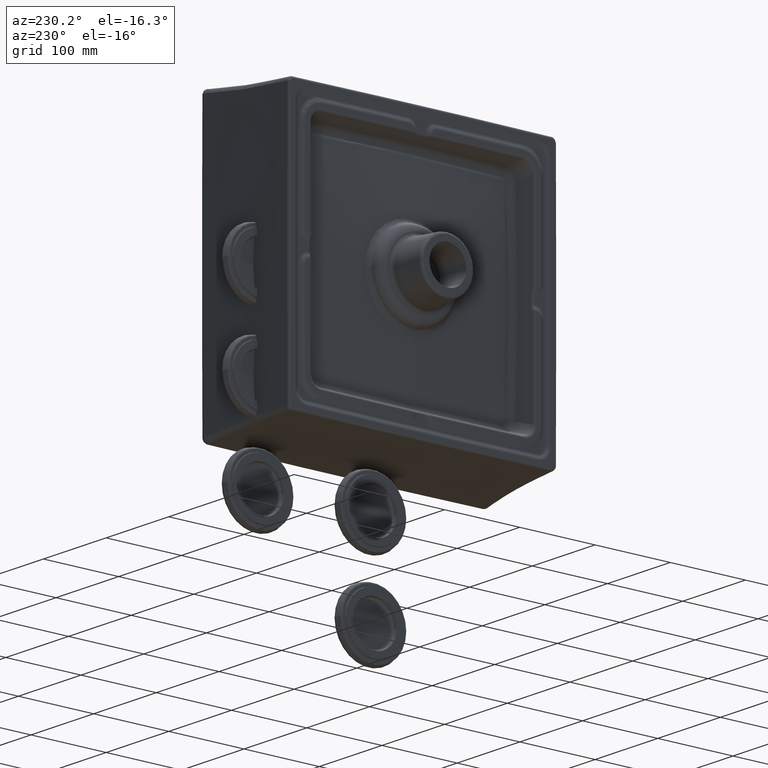
[diagram: clean part render]
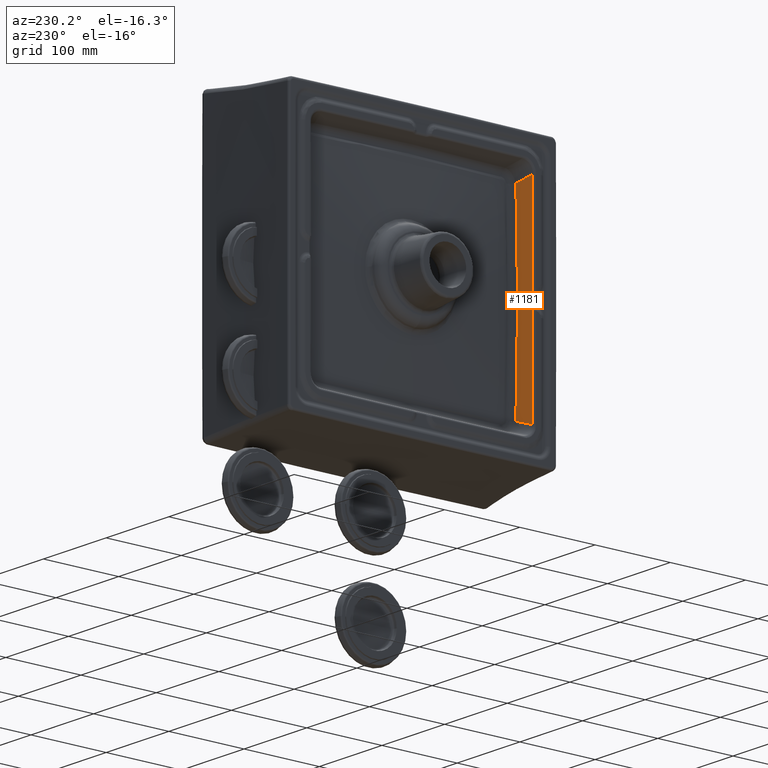
[diagram: same view with one face highlighted and labeled with its STEP entity id]
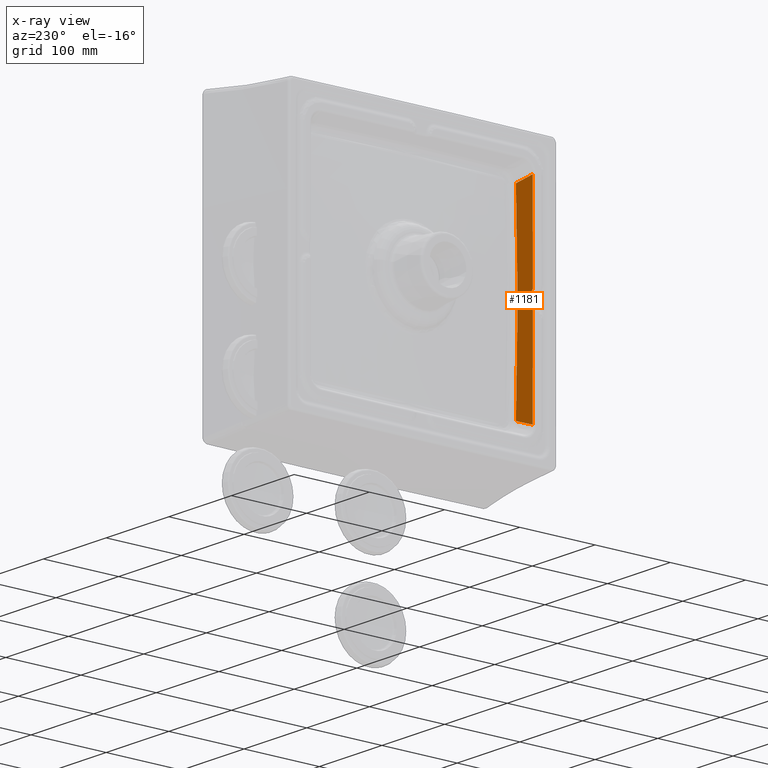
[diagram: x-ray of the same camera — body ghosted, the highlighted face saturated]
A machine part, auxiliary view. The second image highlights one B-rep face of the part: STEP entity #1181.
The next image is the same camera in x-ray: the body ghosted, the highlighted face saturated — about 0% of this face is hidden behind the body in this view.
In plain terms, the highlighted conical surface has half-angle 20 deg.
Its self-contained STEP definition (entity closure, byte-faithful):
#377=CONICAL_SURFACE('',#7120,39953.8697554,20.);
#456=(
BOUNDED_CURVE()
B_SPLINE_CURVE(3,(#11505,#11506,#11507,#11508,#11509),.UNSPECIFIED.,.F.,
 .F.)
B_SPLINE_CURVE_WITH_KNOTS((4,1,4),(0.,0.530372433518572,1.),
 .UNSPECIFIED.)
CURVE()
GEOMETRIC_REPRESENTATION_ITEM()
RATIONAL_B_SPLINE_CURVE((1.14277361366647,1.14277361366647,1.14277361366647,
1.14277361366647,1.14277361366647))
REPRESENTATION_ITEM('')
);
#773=B_SPLINE_CURVE_WITH_KNOTS('',3,(#11530,#11531,#11532,#11533,#11534,
#11535),.UNSPECIFIED.,.F.,.F.,(4,1,1,4),(0.,0.3333333333333,0.6666666666667,
1.),.UNSPECIFIED.);
#774=B_SPLINE_CURVE_WITH_KNOTS('',3,(#11537,#11538,#11539,#11540,#11541,
#11542,#11543,#11544,#11545,#11546,#11547,#11548,#11549,#11550,#11551,#11552,
#11553,#11554,#11555,#11556,#11557,#11558,#11559),.UNSPECIFIED.,.F.,.F.,
(4,2,2,1,1,1,2,2,2,2,2,2,4),(0.,0.125000000000002,0.187500000000003,0.218750000000003,
0.234375000000003,0.242187500000003,0.246093750000003,0.250000000000003,
0.375000000000002,0.437500000000002,0.468750000000002,0.500000000000002,
1.),.UNSPECIFIED.);
#775=B_SPLINE_CURVE_WITH_KNOTS('',3,(#11561,#11562,#11563,#11564,#11565,
#11566,#11567,#11568,#11569,#11570,#11571,#11572,#11573,#11574,#11575,#11576,
#11577,#11578,#11579,#11580,#11581,#11582,#11583,#11584),.UNSPECIFIED.,
 .F.,.F.,(4,2,2,1,2,2,2,2,1,1,1,2,2,4),(0.,0.25,0.375,0.4375,0.468749999999999,
0.499999999999999,0.624999999999997,0.687499999999996,0.718749999999995,
0.734374999999995,0.742187499999995,0.746093749999995,0.749999999999995,
1.),.UNSPECIFIED.);
#776=B_SPLINE_CURVE_WITH_KNOTS('',3,(#11586,#11587,#11588,#11589,#11590,
#11591),.UNSPECIFIED.,.F.,.F.,(4,1,1,4),(0.,0.3333333333333,0.6666666666667,
1.),.UNSPECIFIED.);
#777=B_SPLINE_CURVE_WITH_KNOTS('',3,(#11593,#11594,#11595,#11596),
 .UNSPECIFIED.,.F.,.F.,(4,4),(0.,1.),.UNSPECIFIED.);
#778=B_SPLINE_CURVE_WITH_KNOTS('',3,(#11600,#11601,#11602,#11603,#11604),
 .UNSPECIFIED.,.F.,.F.,(4,1,4),(0.,0.5,1.),.UNSPECIFIED.);
#779=B_SPLINE_CURVE_WITH_KNOTS('',3,(#11606,#11607,#11608,#11609,#11610),
 .UNSPECIFIED.,.F.,.F.,(4,1,4),(0.,0.5,1.),.UNSPECIFIED.);
#780=B_SPLINE_CURVE_WITH_KNOTS('',3,(#11612,#11613,#11614,#11615,#11616,
#11617),.UNSPECIFIED.,.F.,.F.,(4,2,4),(0.,0.5,1.),.UNSPECIFIED.);
#781=B_SPLINE_CURVE_WITH_KNOTS('',3,(#11621,#11622,#11623,#11624,#11625,
#11626),.UNSPECIFIED.,.F.,.F.,(4,2,4),(0.,0.5,1.),.UNSPECIFIED.);
#782=B_SPLINE_CURVE_WITH_KNOTS('',3,(#11628,#11629,#11630,#11631,#11632),
 .UNSPECIFIED.,.F.,.F.,(4,1,4),(0.,0.5,1.),.UNSPECIFIED.);
#783=B_SPLINE_CURVE_WITH_KNOTS('',3,(#11634,#11635,#11636,#11637,#11638),
 .UNSPECIFIED.,.F.,.F.,(4,1,4),(0.,0.5,1.),.UNSPECIFIED.);
#1181=ADVANCED_FACE('',(#1768),#377,.F.);
#1768=FACE_OUTER_BOUND('',#2216,.T.);
#2216=EDGE_LOOP('',(#2986,#2987,#2988,#2989,#2990,#2991,#2992,#2993,#2994,
#2995,#2996,#2997,#2998,#2999,#3000));
#2986=ORIENTED_EDGE('',*,*,#5574,.F.);
#2987=ORIENTED_EDGE('',*,*,#5575,.F.);
#2988=ORIENTED_EDGE('',*,*,#5576,.F.);
#2989=ORIENTED_EDGE('',*,*,#5577,.F.);
#2990=ORIENTED_EDGE('',*,*,#5578,.F.);
#2991=ORIENTED_EDGE('',*,*,#5579,.T.);
#2992=ORIENTED_EDGE('',*,*,#5580,.T.);
#2993=ORIENTED_EDGE('',*,*,#5581,.T.);
#2994=ORIENTED_EDGE('',*,*,#5582,.T.);
#2995=ORIENTED_EDGE('',*,*,#5583,.T.);
#2996=ORIENTED_EDGE('',*,*,#5584,.T.);
#2997=ORIENTED_EDGE('',*,*,#5585,.T.);
#2998=ORIENTED_EDGE('',*,*,#5586,.T.);
#2999=ORIENTED_EDGE('',*,*,#5587,.T.);
#3000=ORIENTED_EDGE('',*,*,#5588,.T.);
#4884=VERTEX_POINT('',#11425);
#4885=VERTEX_POINT('',#11504);
#4886=VERTEX_POINT('',#11536);
#4887=VERTEX_POINT('',#11560);
#4888=VERTEX_POINT('',#11585);
#4889=VERTEX_POINT('',#11592);
#4890=VERTEX_POINT('',#11597);
#4891=VERTEX_POINT('',#11599);
#4892=VERTEX_POINT('',#11605);
#4893=VERTEX_POINT('',#11611);
#4894=VERTEX_POINT('',#11618);
#4895=VERTEX_POINT('',#11620);
#4896=VERTEX_POINT('',#11627);
#4897=VERTEX_POINT('',#11633);
#4898=VERTEX_POINT('',#11639);
#5574=EDGE_CURVE('',#4885,#4884,#456,.T.);
#5575=EDGE_CURVE('',#4886,#4885,#773,.T.);
#5576=EDGE_CURVE('',#4887,#4886,#774,.T.);
#5577=EDGE_CURVE('',#4888,#4887,#775,.T.);
#5578=EDGE_CURVE('',#4889,#4888,#776,.T.);
#5579=EDGE_CURVE('',#4889,#4890,#777,.T.);
#5580=EDGE_CURVE('',#4890,#4891,#6534,.T.);
#5581=EDGE_CURVE('',#4891,#4892,#778,.T.);
#5582=EDGE_CURVE('',#4892,#4893,#779,.T.);
#5583=EDGE_CURVE('',#4893,#4894,#780,.T.);
#5584=EDGE_CURVE('',#4894,#4895,#6535,.T.);
#5585=EDGE_CURVE('',#4895,#4896,#781,.T.);
#5586=EDGE_CURVE('',#4896,#4897,#782,.T.);
#5587=EDGE_CURVE('',#4897,#4898,#783,.T.);
#5588=EDGE_CURVE('',#4898,#4884,#6536,.T.);
#6534=CIRCLE('',#7117,39957.28154475);
#6535=CIRCLE('',#7118,39956.55360428);
#6536=CIRCLE('',#7119,39957.28154475);
#7117=AXIS2_PLACEMENT_3D('',#11598,#8089,#8090);
#7118=AXIS2_PLACEMENT_3D('',#11619,#8091,#8092);
#7119=AXIS2_PLACEMENT_3D('',#11640,#8093,#8094);
#7120=AXIS2_PLACEMENT_3D('',#11641,#8095,#8096);
#8089=DIRECTION('',(0.,-1.,0.));
#8090=DIRECTION('',(-0.00333572704502188,0.,-0.999994436447064));
#8091=DIRECTION('',(0.,-1.,0.));
#8092=DIRECTION('',(-0.000138337107766403,0.,-0.999999990431422));
#8093=DIRECTION('',(0.,-1.,0.));
#8094=DIRECTION('',(0.0003043540660731,0.,-0.9999999536843));
#8095=DIRECTION('',(0.,-1.,0.));
#8096=DIRECTION('',(-1.,-1.37683842302777E-018,0.));
#11425=CARTESIAN_POINT('',(133.2865845151,1.973920751461,-147.5591886031));
#11504=CARTESIAN_POINT('',(126.5048442824,20.721562598,-140.7576766665));
#11505=CARTESIAN_POINT('',(126.504844290558,20.7215623831962,-140.757676066339));
#11506=CARTESIAN_POINT('',(127.703964254313,17.4072416840472,-141.960199111595));
#11507=CARTESIAN_POINT('',(129.964695354975,11.1581108444291,-144.227448246216));
#11508=CARTESIAN_POINT('',(132.225104925728,4.90881650135299,-146.494567340366));
#11509=CARTESIAN_POINT('',(133.286584702336,1.97393957307691,-147.559240300087));
#11530=CARTESIAN_POINT('',(124.3092426557,20.62490032456,-140.7997506193));
#11531=CARTESIAN_POINT('',(124.5829882143,20.63511469066,-140.7951810241));
#11532=CARTESIAN_POINT('',(125.1105578921,20.65409129627,-140.786627029));
#11533=CARTESIAN_POINT('',(125.8306456873,20.68722986117,-140.7723024336));
#11534=CARTESIAN_POINT('',(126.2855452614,20.70989983386,-140.7626173613));
#11535=CARTESIAN_POINT('',(126.5048442824,20.721562598,-140.7576766665));
#11536=CARTESIAN_POINT('',(124.3092426557,20.62490032456,-140.7997506193));
#11537=CARTESIAN_POINT('',(3.26747364312631E-005,18.8870384371619,-141.625679662357));
#11538=CARTESIAN_POINT('',(6.37949969740894,18.887136353807,-141.625641310199));
#11539=CARTESIAN_POINT('',(12.3125774631999,18.89010440129,-141.623040865888));
#11540=CARTESIAN_POINT('',(20.5421127343975,18.9026556223599,-141.614806082787));
#11541=CARTESIAN_POINT('',(23.1736116949554,18.9081317417641,-141.611358413755));
#11542=CARTESIAN_POINT('',(26.9532858149748,18.9183276254023,-141.605216459762));
#11543=CARTESIAN_POINT('',(28.8012293696332,18.9239171964065,-141.601904127532));
#11544=CARTESIAN_POINT('',(30.8838386217502,18.9312723651981,-141.597647365512));
#11545=CARTESIAN_POINT('',(31.9068106766601,18.9351528630784,-141.595425375142));
#11546=CARTESIAN_POINT('',(32.3412987206077,18.9368587766891,-141.594453526893));
#11547=CARTESIAN_POINT('',(32.6300843895211,18.9380054965231,-141.593801336422));
#11548=CARTESIAN_POINT('',(32.7448614754759,18.9384650959719,-141.593540260941));
#11549=CARTESIAN_POINT('',(38.4439296155671,18.9616062612683,-141.580421970792));
#11550=CARTESIAN_POINT('',(43.8494218285755,18.9935938130771,-141.563182374964));
#11551=CARTESIAN_POINT('',(51.776065355913,19.0581579315637,-141.529944307221));
#11552=CARTESIAN_POINT('',(54.3880051890271,19.0823800424468,-141.517657142276));
#11553=CARTESIAN_POINT('',(58.2604426175307,19.1227937697354,-141.497429057451));
#11554=CARTESIAN_POINT('',(59.5436764390314,19.1369447457142,-141.490386945447));
#11555=CARTESIAN_POINT('',(62.0949775053791,19.1666068859439,-141.475707899636));
#11556=CARTESIAN_POINT('',(63.3239153786604,19.1816154482499,-141.468317196653));
#11557=CARTESIAN_POINT('',(85.4172676038888,19.4653943784264,-141.32929030384));
#11558=CARTESIAN_POINT('',(105.315116025293,19.9412006965473,-141.107688899164));
#11559=CARTESIAN_POINT('',(124.309242654169,20.6249000881622,-140.79974996938));
#11560=CARTESIAN_POINT('',(3.267473651649E-005,18.88703851008,-141.6256798627));
#11561=CARTESIAN_POINT('',(-124.30754292915,20.6248578641236,-140.799770534674));
#11562=CARTESIAN_POINT('',(-114.809195382584,20.2829329183767,-140.953772707011));
#11563=CARTESIAN_POINT('',(-105.086310464799,19.9918304159871,-141.086605881521));
#11564=CARTESIAN_POINT('',(-90.1660894116756,19.6348088340038,-141.252074202116));
#11565=CARTESIAN_POINT('',(-85.1366853998394,19.5291273729303,-141.301586704155));
#11566=CARTESIAN_POINT('',(-77.5087694157394,19.3905389306666,-141.3673223204));
#11567=CARTESIAN_POINT('',(-73.6738681882625,19.326182730801,-141.398071464534));
#11568=CARTESIAN_POINT('',(-69.8076249495055,19.2690385265183,-141.425692125939));
#11569=CARTESIAN_POINT('',(-67.2231731615057,19.2325209230553,-141.443417283847));
#11570=CARTESIAN_POINT('',(-65.8896990966328,19.2145662072398,-141.452173239739));
#11571=CARTESIAN_POINT('',(-59.5826597846944,19.1335299665729,-141.491871325792));
#11572=CARTESIAN_POINT('',(-54.4176026054836,19.0796326471108,-141.518882413718));
#11573=CARTESIAN_POINT('',(-46.4913348395572,19.0150665847331,-141.552120725759));
#11574=CARTESIAN_POINT('',(-43.8194682784695,18.9962642595572,-141.561985145452));
#11575=CARTESIAN_POINT('',(-39.7670584682348,18.9720143958651,-141.574980069736));
#11576=CARTESIAN_POINT('',(-37.7296994654782,18.9608673706637,-141.581030740288));
#11577=CARTESIAN_POINT('',(-35.33326564076,18.949490380595,-141.587332043061));
#11578=CARTESIAN_POINT('',(-34.130170559808,18.9441974974178,-141.590296590389));
#11579=CARTESIAN_POINT('',(-33.613513122197,18.9420126529879,-141.59152759854));
#11580=CARTESIAN_POINT('',(-33.2688425572878,18.9405745128525,-141.592339531914));
#11581=CARTESIAN_POINT('',(-33.067083377748,18.9397456489098,-141.592808595402));
#11582=CARTESIAN_POINT('',(-23.7551969170458,18.9019343358894,-141.614244478059));
#11583=CARTESIAN_POINT('',(-12.7797468790523,18.8872375286752,-141.625601023838));
#11584=CARTESIAN_POINT('',(3.26747365493659E-005,18.8870384845547,-141.625679792569));
#11585=CARTESIAN_POINT('',(-124.3075429304,20.62485800422,-140.7997709198));
#11586=CARTESIAN_POINT('',(-126.5048422466,20.72156783657,-140.7576735863));
#11587=CARTESIAN_POINT('',(-126.2444080595,20.70770904397,-140.7635428157));
#11588=CARTESIAN_POINT('',(-125.7343222843,20.68259173988,-140.7742951532));
#11589=CARTESIAN_POINT('',(-124.9978949907,20.64947178976,-140.7886607295));
#11590=CARTESIAN_POINT('',(-124.5335927017,20.63328974942,-140.7959985863));
#11591=CARTESIAN_POINT('',(-124.3075429304,20.62485800422,-140.7997709198));
#11592=CARTESIAN_POINT('',(-126.5048422466,20.72156783657,-140.7576735863));
#11593=CARTESIAN_POINT('',(-126.504842248015,20.7215679988074,-140.757674032038));
#11594=CARTESIAN_POINT('',(-128.765303397347,14.473741757301,-143.024550330435));
#11595=CARTESIAN_POINT('',(-131.025884181201,8.2245322808803,-145.291739075558));
#11596=CARTESIAN_POINT('',(-133.286584686615,1.97393956954534,-147.559240304552));
#11597=CARTESIAN_POINT('',(-133.2865846944,1.973939570016,-147.5592403012));
#11598=CARTESIAN_POINT('',(0.,1.973939570016,39809.5));
#11599=CARTESIAN_POINT('',(-12.16116110736,1.973939569751,-147.7796941021));
#11600=CARTESIAN_POINT('',(-12.16116110736,1.973939569751,-147.7796941021));
#11601=CARTESIAN_POINT('',(-11.93747534281,1.973955722848,-147.7797562978));
#11602=CARTESIAN_POINT('',(-11.50168533929,2.023279459362,-147.7619328224));
#11603=CARTESIAN_POINT('',(-11.08813684117,2.163426079289,-147.7110393179));
#11604=CARTESIAN_POINT('',(-10.88744980198,2.257447107832,-147.676873148));
#11605=CARTESIAN_POINT('',(-10.88744980198,2.257447107832,-147.676873148));
#11606=CARTESIAN_POINT('',(-10.88744980198,2.257447107832,-147.676873148));
#11607=CARTESIAN_POINT('',(-10.82028736892,2.288926661281,-147.6654338267));
#11608=CARTESIAN_POINT('',(-10.68903109532,2.356414837845,-147.6409041017));
#11609=CARTESIAN_POINT('',(-10.56340567829,2.433246004256,-147.6129775541));
#11610=CARTESIAN_POINT('',(-10.5020602836,2.473940515618,-147.5981820875));
#11611=CARTESIAN_POINT('',(-10.5020602836,2.473940515618,-147.5981820875));
#11612=CARTESIAN_POINT('',(-10.5020602829218,2.47393957087524,-147.598179491837));
#11613=CARTESIAN_POINT('',(-9.76011101586174,2.96605042444724,-147.419260792045));
#11614=CARTESIAN_POINT('',(-8.94436717666012,3.34512131038556,-147.281483126909));
#11615=CARTESIAN_POINT('',(-7.26583696325101,3.84710967272132,-147.099114786437));
#11616=CARTESIAN_POINT('',(-6.44294212011648,3.97215331711294,-147.053745459177));
#11617=CARTESIAN_POINT('',(-5.52747407844035,3.97393956659151,-147.053221960732));
#11618=CARTESIAN_POINT('',(-5.527474061928,3.973939570016,-147.0532219563));
#11619=CARTESIAN_POINT('',(0.,3.973939570016,39809.5));
#11620=CARTESIAN_POINT('',(5.527474083165,3.973955627923,-147.0532660872));
#11621=CARTESIAN_POINT('',(5.52747407706025,3.97393956713075,-147.053221960533));
#11622=CARTESIAN_POINT('',(6.41984434134317,3.97221473773952,-147.053726299174));
#11623=CARTESIAN_POINT('',(7.239962431441,3.85365414380716,-147.096737881578));
#11624=CARTESIAN_POINT('',(8.95533164866399,3.34307231711687,-147.282226834696));
#11625=CARTESIAN_POINT('',(9.7568006876793,2.96826443060085,-147.418455829743));
#11626=CARTESIAN_POINT('',(10.5020602828459,2.47393957091394,-147.598179491823));
#11627=CARTESIAN_POINT('',(10.50206028338,2.473940305761,-147.5981815108));
#11628=CARTESIAN_POINT('',(10.50206028338,2.473940305761,-147.5981815108));
#11629=CARTESIAN_POINT('',(10.56341658976,2.433238465739,-147.612979642));
#11630=CARTESIAN_POINT('',(10.68909266337,2.35638528141,-147.6409151691));
#11631=CARTESIAN_POINT('',(10.8202290395,2.288949165766,-147.6654256519));
#11632=CARTESIAN_POINT('',(10.88737923523,2.257472251967,-147.6768640159));
#11633=CARTESIAN_POINT('',(10.88737923523,2.257472251967,-147.6768640159));
#11634=CARTESIAN_POINT('',(10.88737923523,2.257472251967,-147.6768640159));
#11635=CARTESIAN_POINT('',(11.08866099975,2.163112925934,-147.7111531617));
#11636=CARTESIAN_POINT('',(11.50317834059,2.023054165176,-147.7620143872));
#11637=CARTESIAN_POINT('',(11.93817900711,1.973878138962,-147.7797843283));
#11638=CARTESIAN_POINT('',(12.16116110737,1.973939568648,-147.7796940991));
#11639=CARTESIAN_POINT('',(12.16116110737,1.973939570016,-147.7796941028));
#11640=CARTESIAN_POINT('',(0.,1.973939570016,39809.5));
#11641=CARTESIAN_POINT('',(0.,11.34775378392,39809.5));